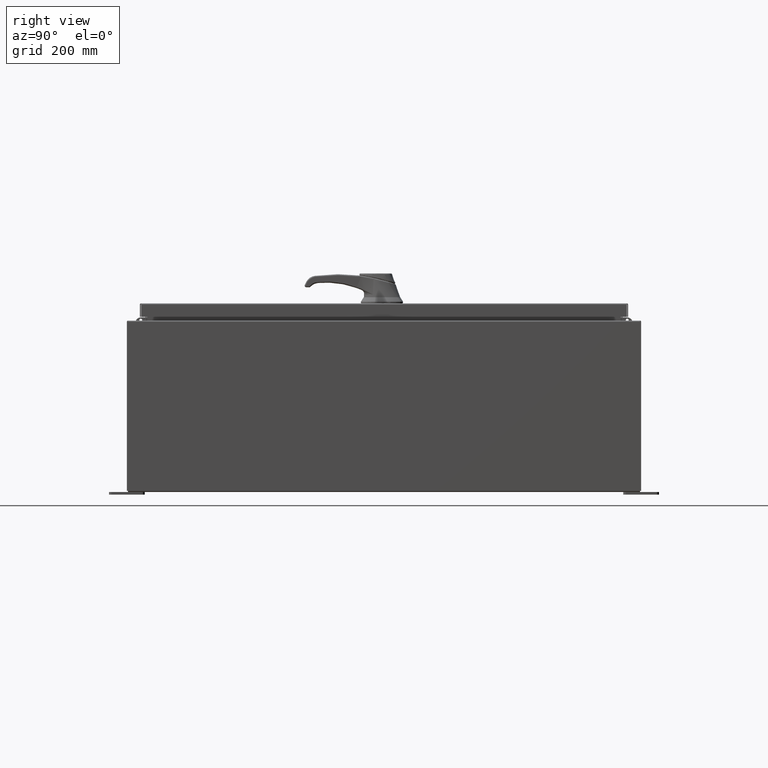
[diagram: clean part render]
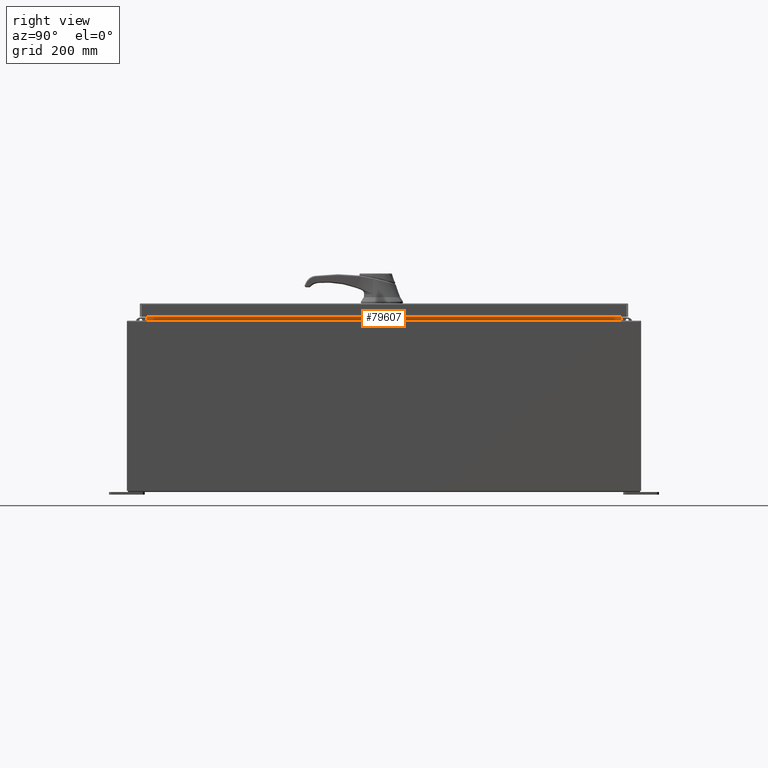
[diagram: same view with one face highlighted and labeled with its STEP entity id]
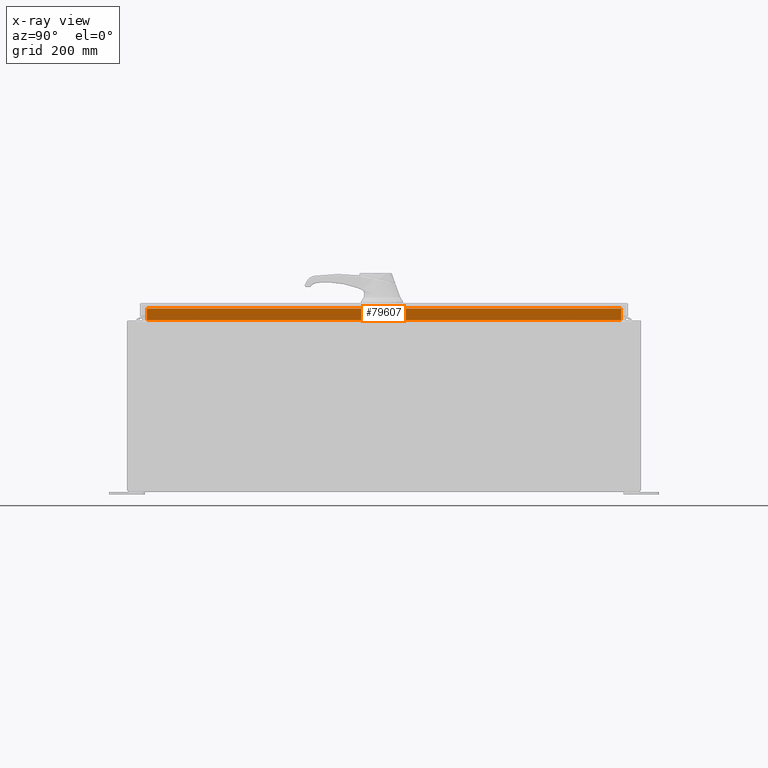
[diagram: x-ray of the same camera — body ghosted, the highlighted face saturated]
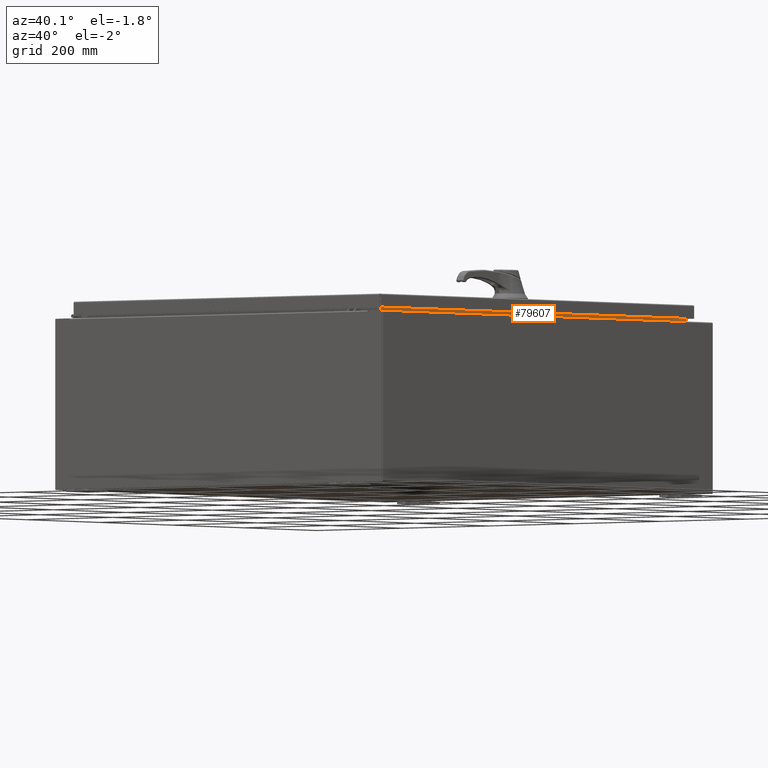
[diagram: same view with one face highlighted and labeled with its STEP entity id]
A machine part, right view. The second image highlights one B-rep face of the part: STEP entity #79607.
The next image is the same camera in x-ray: the body ghosted, the highlighted face saturated — about 0% of this face is hidden behind the body in this view.
A second angle (auxiliary view) of the same face is appended — the face is thin or edge-on in the first view.
In plain terms, the highlighted planar face has unit normal (1, 0, -0).
Its self-contained STEP definition (entity closure, byte-faithful):
#1793 = DIRECTION ( 'NONE',  ( -4.723826639860386500E-015, 0.0000000000000000000, -1.000000000000000000 ) ) ;
#3430 = CARTESIAN_POINT ( 'NONE',  ( 13.69970000000004400, -16.59375000000000000, 12.76290000000001100 ) ) ;
#8967 = VERTEX_POINT ( 'NONE', #107366 ) ;
#14547 = ORIENTED_EDGE ( 'NONE', *, *, #53365, .F. ) ;
#16736 = VECTOR ( 'NONE', #110736, 39.37007874015748100 ) ;
#17707 = EDGE_LOOP ( 'NONE', ( #14547, #122356, #46351, #116865 ) ) ;
#19686 = LINE ( 'NONE', #101104, #16736 ) ;
#23164 = CARTESIAN_POINT ( 'NONE',  ( 13.69970000000004100, -16.59375000000000000, 11.93830000000001200 ) ) ;
#28853 = CARTESIAN_POINT ( 'NONE',  ( 13.69970000000004100, 16.59375000000000000, 11.92530000000000900 ) ) ;
#30289 = PLANE ( 'NONE',  #56276 ) ;
#32208 = VECTOR ( 'NONE', #121093, 39.37007874015748100 ) ;
#32668 = VERTEX_POINT ( 'NONE', #59188 ) ;
#36409 = EDGE_CURVE ( 'NONE', #93348, #117992, #83264, .T. ) ;
#37522 = CARTESIAN_POINT ( 'NONE',  ( 13.69970000000004300, 16.59375000000000000, 11.93830000000000900 ) ) ;
#43797 = EDGE_CURVE ( 'NONE', #32668, #93348, #67873, .T. ) ;
#46351 = ORIENTED_EDGE ( 'NONE', *, *, #36409, .F. ) ;
#53365 = EDGE_CURVE ( 'NONE', #8967, #32668, #83015, .T. ) ;
#54020 = CARTESIAN_POINT ( 'NONE',  ( 13.69970000000004400, -16.59375000000000000, 12.85060000000001100 ) ) ;
#56276 = AXIS2_PLACEMENT_3D ( 'NONE', #116669, #59253, #1793 ) ;
#57456 = VECTOR ( 'NONE', #105646, 39.37007874015748100 ) ;
#59188 = CARTESIAN_POINT ( 'NONE',  ( 13.69970000000004100, 16.59375000000000000, 11.93830000000001200 ) ) ;
#59253 = DIRECTION ( 'NONE',  ( 1.000000000000000000, 0.0000000000000000000, -4.723826639860386500E-015 ) ) ;
#67873 = LINE ( 'NONE', #37522, #90401 ) ;
#79607 = ADVANCED_FACE ( 'NONE', ( #107044 ), #30289, .T. ) ;
#83015 = LINE ( 'NONE', #28853, #57456 ) ;
#83264 = LINE ( 'NONE', #54020, #32208 ) ;
#85313 = DIRECTION ( 'NONE',  ( 6.585245634444928200E-017, -1.000000000000000000, 6.585245634444928200E-017 ) ) ;
#90401 = VECTOR ( 'NONE', #85313, 39.37007874015748100 ) ;
#93348 = VERTEX_POINT ( 'NONE', #23164 ) ;
#99627 = EDGE_CURVE ( 'NONE', #117992, #8967, #19686, .T. ) ;
#101104 = CARTESIAN_POINT ( 'NONE',  ( 13.69970000000004800, -16.59375000000000000, 12.76290000000001100 ) ) ;
#105646 = DIRECTION ( 'NONE',  ( -4.723826639860386500E-015, -0.0000000000000000000, -1.000000000000000000 ) ) ;
#107044 = FACE_OUTER_BOUND ( 'NONE', #17707, .T. ) ;
#107366 = CARTESIAN_POINT ( 'NONE',  ( 13.69970000000004800, 16.59375000000000000, 12.76290000000001100 ) ) ;
#110736 = DIRECTION ( 'NONE',  ( 0.0000000000000000000, 1.000000000000000000, 0.0000000000000000000 ) ) ;
#116669 = CARTESIAN_POINT ( 'NONE',  ( 13.69969999999998400, 0.0000000000000000000, -6.471500781809525500E-014 ) ) ;
#116865 = ORIENTED_EDGE ( 'NONE', *, *, #43797, .F. ) ;
#117992 = VERTEX_POINT ( 'NONE', #3430 ) ;
#121093 = DIRECTION ( 'NONE',  ( 4.723826639860397600E-015, -0.0000000000000000000, 1.000000000000000000 ) ) ;
#122356 = ORIENTED_EDGE ( 'NONE', *, *, #99627, .F. ) ;